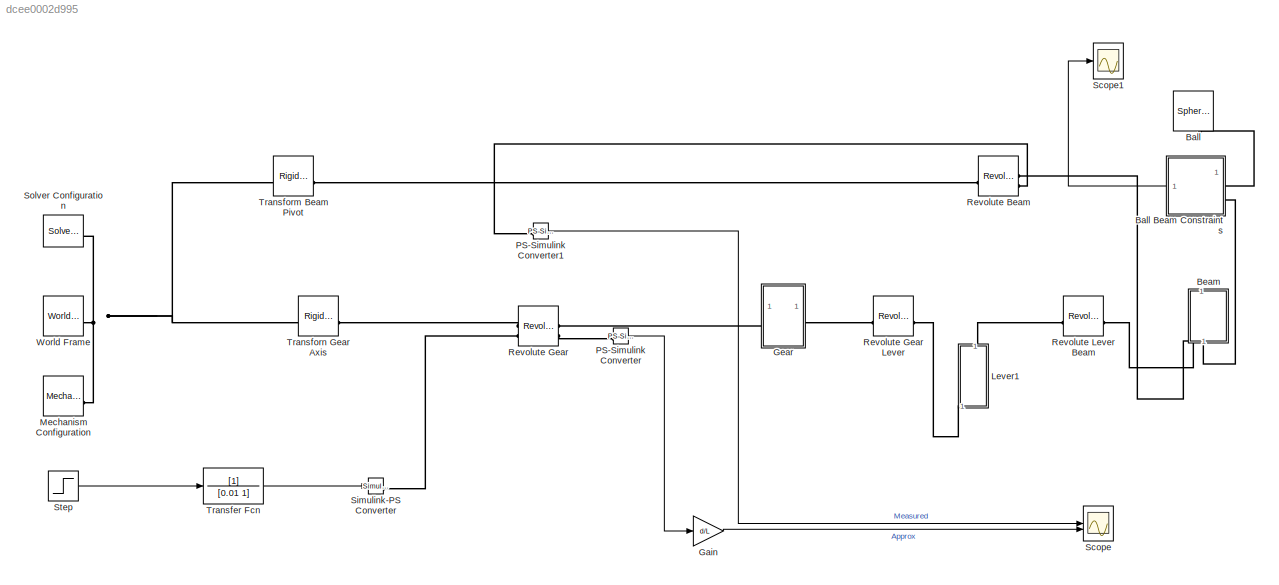
MODEL slx_dcee0002d995
KIND model
CONFIG AbsTol = 1e-4
CONFIG EnableMultiTasking = on
CONFIG FixedStep = auto
CONFIG MaxStep = auto
CONFIG MinStep = auto
CONFIG RelTol = 1e-3
CONFIG SampleTimeConstraint = Unconstrained
CONFIG SolverName = ode23t
CONFIG StartTime = 0.0
CONFIG StopTime = 10
WORKSPACE source: mxarray member
WORKSPACE J = 4.267e-07
WORKSPACE L = 1
WORKSPACE R = 0.02
WORKSPACE d = 0.045
WORKSPACE m = 0.0016
BLOCK [Reference] Ball  REF=sm_lib/Body Elements/Spherical Solid
  NameLocation = right
  SourceBlock = sm_lib/Body Elements/Spherical Solid
  SourceType = Spherical Solid
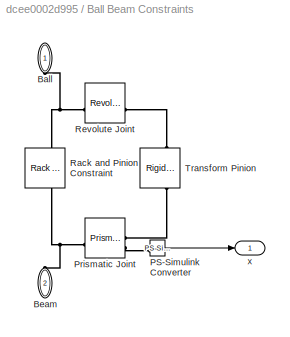
BLOCK [SubSystem] Ball Beam Constraints
BLOCK [PMIOPort] Ball Beam Constraints/Ball
  NameLocation = right
  Side = Left
BLOCK [PMIOPort] Ball Beam Constraints/Beam
  NameLocation = left
  Port = 2
  Side = Left
BLOCK [Reference] Ball Beam Constraints/PS-Simulink Converter  REF=nesl_utility/PS-Simulink
Converter
  SourceBlock = nesl_utility/PS-Simulink\nConverter
  SourceType = PS-Simulink\nConverter
BLOCK [Reference] Ball Beam Constraints/Prismatic Joint  REF=sm_lib/Joints/Prismatic
Joint
  SourceBlock = sm_lib/Joints/Prismatic\nJoint
  SourceType = Prismatic\nJoint
BLOCK [Reference] Ball Beam Constraints/Rack and Pinion Constraint  REF=sm_lib/Gears and
Couplings/Gears/Rack and Pinion
Constraint
  NameLocation = left
  SourceBlock = sm_lib/Gears and\nCouplings/Gears/Rack and Pinion\nConstraint
  SourceType = Rack and Pinion\nConstraint
BLOCK [Reference] Ball Beam Constraints/Revolute Joint  REF=sm_lib/Joints/Revolute Joint
  SourceBlock = sm_lib/Joints/Revolute Joint
  SourceType = Revolute Joint
BLOCK [Reference] Ball Beam Constraints/Transform Pinion  REF=sm_lib/Frames and
Transforms/Rigid
Transform
  NameLocation = right
  SourceBlock = sm_lib/Frames and\nTransforms/Rigid\nTransform
  SourceType = Rigid\nTransform
BLOCK [Outport] Ball Beam Constraints/x
  VectorParamsAs1DForOutWhenUnconnected = off
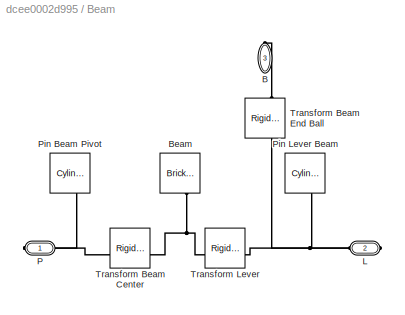
BLOCK [SubSystem] Beam
  NameLocation = left
BLOCK [PMIOPort] Beam/B
  NameLocation = right
  Port = 3
  Side = Right
BLOCK [Reference] Beam/Beam  REF=sm_lib/Body Elements/Brick Solid
  NameLocation = right
  SourceBlock = sm_lib/Body Elements/Brick Solid
  SourceType = Brick Solid
BLOCK [PMIOPort] Beam/L
  Port = 2
  Side = Right
BLOCK [PMIOPort] Beam/P
  Side = Right
BLOCK [Reference] Beam/Pin Beam Pivot  REF=sm_lib/Body Elements/Cylindrical Solid
  NameLocation = left
  SourceBlock = sm_lib/Body Elements/Cylindrical Solid
  SourceType = Cylindrical Solid
BLOCK [Reference] Beam/Pin Lever Beam  REF=sm_lib/Body Elements/Cylindrical Solid
  NameLocation = right
  SourceBlock = sm_lib/Body Elements/Cylindrical Solid
  SourceType = Cylindrical Solid
BLOCK [Reference] Beam/Transform Beam Center  REF=sm_lib/Frames and
Transforms/Rigid
Transform
  SourceBlock = sm_lib/Frames and\nTransforms/Rigid\nTransform
  SourceType = Rigid\nTransform
BLOCK [Reference] Beam/Transform Beam End Ball  REF=sm_lib/Frames and
Transforms/Rigid
Transform
  NameLocation = left
  SourceBlock = sm_lib/Frames and\nTransforms/Rigid\nTransform
  SourceType = Rigid\nTransform
BLOCK [Reference] Beam/Transform Lever  REF=sm_lib/Frames and
Transforms/Rigid
Transform
  SourceBlock = sm_lib/Frames and\nTransforms/Rigid\nTransform
  SourceType = Rigid\nTransform
BLOCK [Gain] Gain
  Gain = d/L
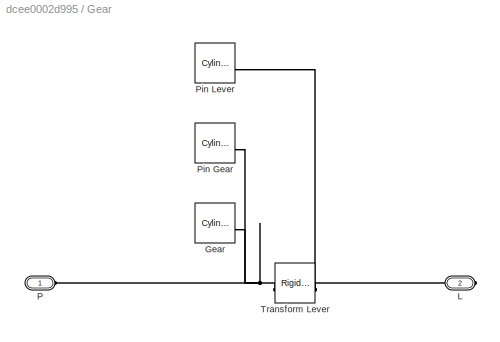
BLOCK [SubSystem] Gear
BLOCK [Reference] Gear/Gear  REF=sm_lib/Body Elements/Cylindrical Solid
  SourceBlock = sm_lib/Body Elements/Cylindrical Solid
  SourceType = Cylindrical Solid
BLOCK [PMIOPort] Gear/L
  Port = 2
  Side = Right
BLOCK [PMIOPort] Gear/P
  Side = Left
BLOCK [Reference] Gear/Pin Gear  REF=sm_lib/Body Elements/Cylindrical Solid
  SourceBlock = sm_lib/Body Elements/Cylindrical Solid
  SourceType = Cylindrical Solid
BLOCK [Reference] Gear/Pin Lever  REF=sm_lib/Body Elements/Cylindrical Solid
  SourceBlock = sm_lib/Body Elements/Cylindrical Solid
  SourceType = Cylindrical Solid
BLOCK [Reference] Gear/Transform Lever  REF=sm_lib/Frames and
Transforms/Rigid
Transform
  SourceBlock = sm_lib/Frames and\nTransforms/Rigid\nTransform
  SourceType = Rigid\nTransform
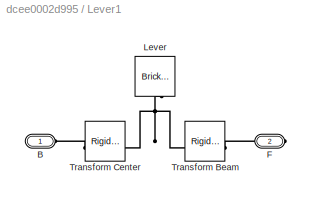
BLOCK [SubSystem] Lever1
  NameLocation = right
BLOCK [PMIOPort] Lever1/B
  Side = Left
BLOCK [PMIOPort] Lever1/F
  Port = 2
  Side = Right
BLOCK [Reference] Lever1/Lever  REF=sm_lib/Body Elements/Brick Solid
  NameLocation = right
  SourceBlock = sm_lib/Body Elements/Brick Solid
  SourceType = Brick Solid
BLOCK [Reference] Lever1/Transform Beam  REF=sm_lib/Frames and
Transforms/Rigid
Transform
  SourceBlock = sm_lib/Frames and\nTransforms/Rigid\nTransform
  SourceType = Rigid\nTransform
BLOCK [Reference] Lever1/Transform Center  REF=sm_lib/Frames and
Transforms/Rigid
Transform
  SourceBlock = sm_lib/Frames and\nTransforms/Rigid\nTransform
  SourceType = Rigid\nTransform
BLOCK [Reference] Mechanism Configuration  REF=sm_lib/Utilities/Mechanism
Configuration
  SourceBlock = sm_lib/Utilities/Mechanism\nConfiguration
  SourceType = Mechanism\nConfiguration
BLOCK [Reference] PS-Simulink Converter  REF=nesl_utility/PS-Simulink
Converter
  SourceBlock = nesl_utility/PS-Simulink\nConverter
  SourceType = PS-Simulink\nConverter
BLOCK [Reference] PS-Simulink Converter1  REF=nesl_utility/PS-Simulink
Converter
  SourceBlock = nesl_utility/PS-Simulink\nConverter
  SourceType = PS-Simulink\nConverter
BLOCK [Reference] Revolute Beam  REF=sm_lib/Joints/Revolute Joint
  SourceBlock = sm_lib/Joints/Revolute Joint
  SourceType = Revolute Joint
BLOCK [Reference] Revolute Gear  REF=sm_lib/Joints/Revolute Joint
  SourceBlock = sm_lib/Joints/Revolute Joint
  SourceType = Revolute Joint
BLOCK [Reference] Revolute Gear Lever  REF=sm_lib/Joints/Revolute Joint
  SourceBlock = sm_lib/Joints/Revolute Joint
  SourceType = Revolute Joint
BLOCK [Reference] Revolute Lever Beam  REF=sm_lib/Joints/Revolute Joint
  SourceBlock = sm_lib/Joints/Revolute Joint
  SourceType = Revolute Joint
BLOCK [Scope] Scope
  Floating = off
  NumInputPorts = 2
  ScopeSpecificationString = Simulink.scopes.TimeScopeBlockCfg('CurrentConfiguration', extmgr.ConfigurationSet(extmgr.Configuration('Core','General UI',true),extmgr.Configuration('Core','Source UI',true),extmgr.Configuration('Sources','WiredSimulink',true),extmgr.Configuration('Visuals','Time Domain',true,'SerializedDisplays',{struct('MinYLimReal','-0.00169','MaxYLimReal','0.01519','YLabelReal','','MinYLimMag','0.00000','MaxY...<+1337ch>
BLOCK [Scope] Scope1
  Floating = off
  NumInputPorts = 1
  ScopeSpecificationString = Simulink.scopes.TimeScopeBlockCfg('CurrentConfiguration', extmgr.ConfigurationSet(extmgr.Configuration('Core','General UI',true),extmgr.Configuration('Core','Source UI',true),extmgr.Configuration('Sources','WiredSimulink',true,'DataLoggingVariableName','ScopeData1'),extmgr.Configuration('Visuals','Time Domain',true,'SerializedDisplays',{struct('MinYLimReal','-0.19189','MaxYLimReal','1.72336','YLab...<+1409ch>
BLOCK [Reference] Simulink-PS Converter  REF=nesl_utility/Simulink-PS
Converter
  SourceBlock = nesl_utility/Simulink-PS\nConverter
  SourceType = Simulink-PS\nConverter
BLOCK [Reference] Solver Configuration  REF=nesl_utility/Solver
Configuration
  SourceBlock = nesl_utility/Solver\nConfiguration
  SourceType = Solver\nConfiguration
BLOCK [Step] Step
  After = 0.3
  SampleTime = 0
  Time = 0
BLOCK [TransferFcn] Transfer Fcn
  Denominator = [0.01 1]
BLOCK [Reference] Transform Beam Pivot  REF=sm_lib/Frames and
Transforms/Rigid
Transform
  SourceBlock = sm_lib/Frames and\nTransforms/Rigid\nTransform
  SourceType = Rigid\nTransform
BLOCK [Reference] Transforn Gear Axis  REF=sm_lib/Frames and
Transforms/Rigid
Transform
  SourceBlock = sm_lib/Frames and\nTransforms/Rigid\nTransform
  SourceType = Rigid\nTransform
BLOCK [Reference] World Frame  REF=sm_lib/Frames and
Transforms/World Frame
  SourceBlock = sm_lib/Frames and\nTransforms/World Frame
  SourceType = World Frame
LINE Ball Beam Constraints/PS-Simulink Converter:1 -> Ball Beam Constraints/x:1
LINE Ball Beam Constraints:1 -> Scope1:1
LINE Gain:1 -> Scope:2
LINE PS-Simulink Converter1:1 -> Scope:1
LINE PS-Simulink Converter:1 -> Gain:1
LINE Step:1 -> Transfer Fcn:1
LINE Transfer Fcn:1 -> Simulink-PS Converter:1
PNET net1: Ball Beam Constraints/Ball:RConn1 -- Ball Beam Constraints/Rack and Pinion Constraint:LConn1 -- Ball Beam Constraints/Revolute Joint:RConn1
PNET net2: Ball Beam Constraints/Beam:RConn1 -- Ball Beam Constraints/Prismatic Joint:LConn1 -- Ball Beam Constraints/Rack and Pinion Constraint:RConn1
PLINE Ball Beam Constraints/PS-Simulink Converter:LConn1 -- Ball Beam Constraints/Prismatic Joint:RConn2
PLINE Ball Beam Constraints/Prismatic Joint:RConn1 -- Ball Beam Constraints/Transform Pinion:LConn1
PLINE Ball Beam Constraints/Revolute Joint:LConn1 -- Ball Beam Constraints/Transform Pinion:RConn1
PLINE Ball Beam Constraints:LConn1 -- Ball:RConn1
PLINE Ball Beam Constraints:LConn2 -- Beam:RConn3
PLINE Beam/B:RConn1 -- Beam/Transform Beam End Ball:RConn1
PNET net3: Beam/Beam:RConn1 -- Beam/Transform Beam Center:LConn1 -- Beam/Transform Lever:RConn1
PNET net4: Beam/L:RConn1 -- Beam/Pin Lever Beam:RConn1 -- Beam/Transform Beam End Ball:LConn1 -- Beam/Transform Lever:LConn1
PNET net5: Beam/P:RConn1 -- Beam/Pin Beam Pivot:RConn1 -- Beam/Transform Beam Center:RConn1
PLINE Beam:RConn1 -- Revolute Beam:RConn1
PLINE Beam:RConn2 -- Revolute Lever Beam:RConn1
PNET net6: Gear/Gear:RConn1 -- Gear/P:RConn1 -- Gear/Pin Gear:RConn1 -- Gear/Transform Lever:LConn1
PNET net7: Gear/L:RConn1 -- Gear/Pin Lever:RConn1 -- Gear/Transform Lever:RConn1
PLINE Gear:LConn1 -- Revolute Gear:RConn1
PLINE Gear:RConn1 -- Revolute Gear Lever:LConn1
PLINE Lever1/B:RConn1 -- Lever1/Transform Center:LConn1
PLINE Lever1/F:RConn1 -- Lever1/Transform Beam:RConn1
PNET net8: Lever1/Lever:RConn1 -- Lever1/Transform Beam:LConn1 -- Lever1/Transform Center:RConn1
PLINE Lever1:LConn1 -- Revolute Gear Lever:RConn1
PLINE Lever1:RConn1 -- Revolute Lever Beam:LConn1
PNET net9: Mechanism Configuration:RConn1 -- Solver Configuration:RConn1 -- Transform Beam Pivot:LConn1 -- Transforn Gear Axis:LConn1 -- World Frame:RConn1
PLINE PS-Simulink Converter1:LConn1 -- Revolute Beam:RConn2
PLINE PS-Simulink Converter:LConn1 -- Revolute Gear:RConn2
PLINE Revolute Beam:LConn1 -- Transform Beam Pivot:RConn1
PLINE Revolute Gear:LConn1 -- Transforn Gear Axis:RConn1
PLINE Revolute Gear:LConn2 -- Simulink-PS Converter:RConn1
note: PNET lines group multi-terminal physical nets as a canonical sorted terminal list (undirected conserving connections); 2-terminal nets keep the pairwise PLINE form
